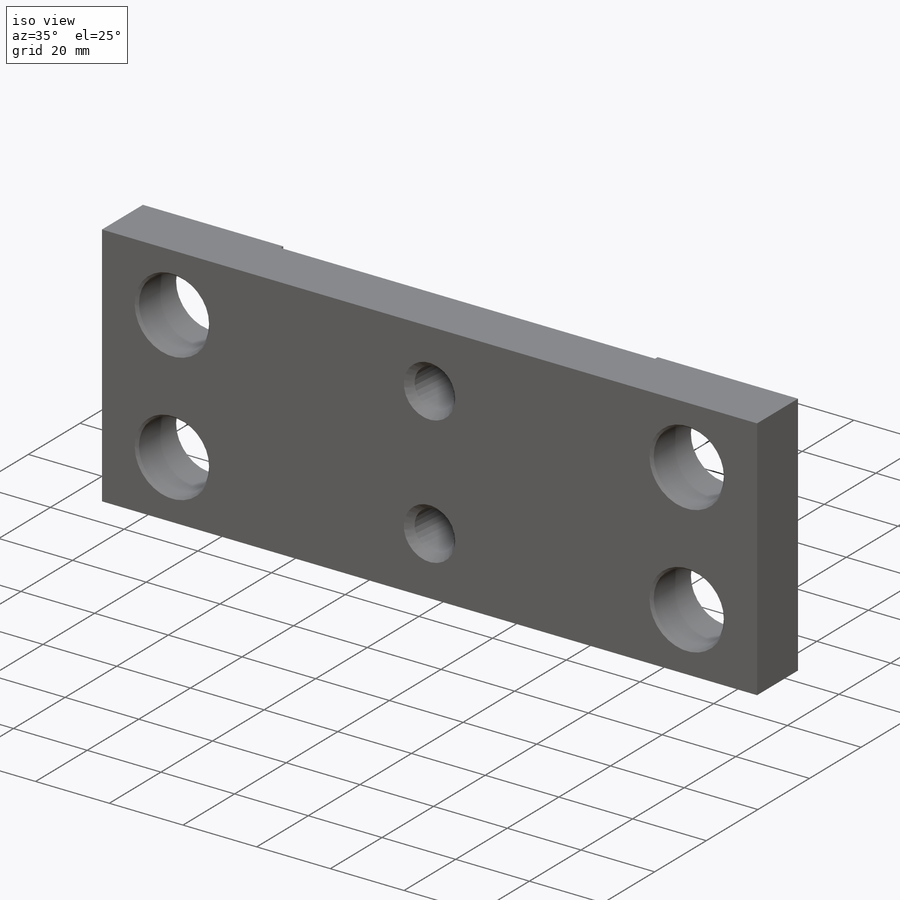
[diagram: iso view]
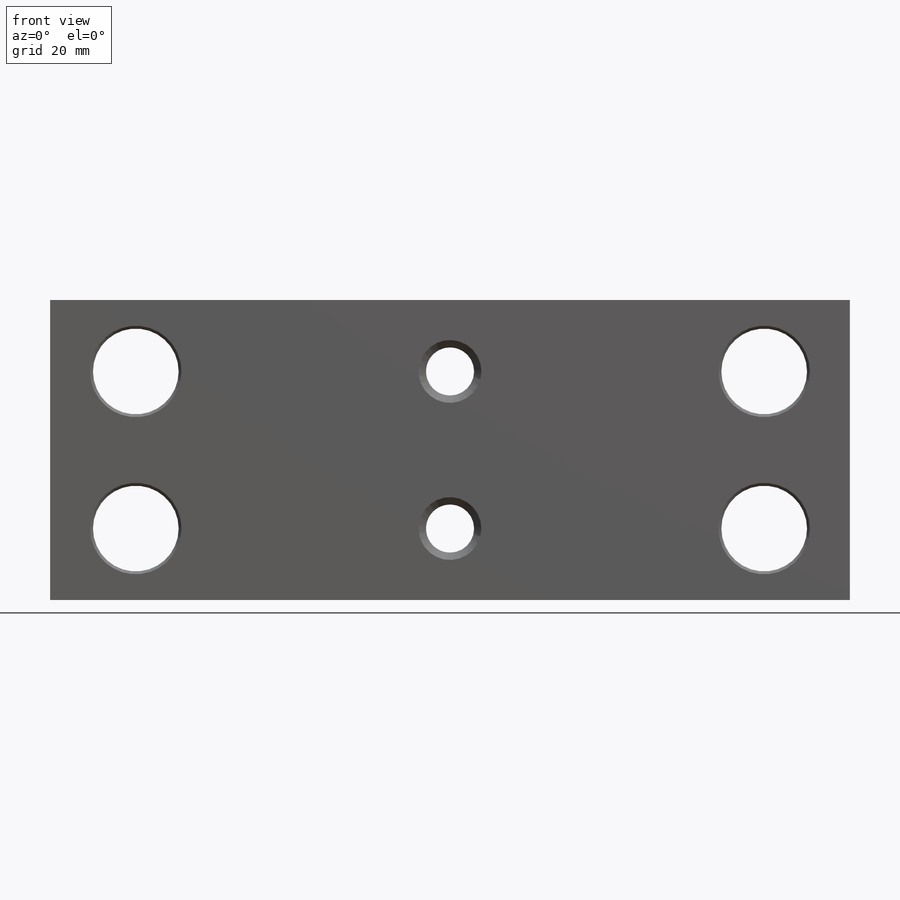
[diagram: front view]
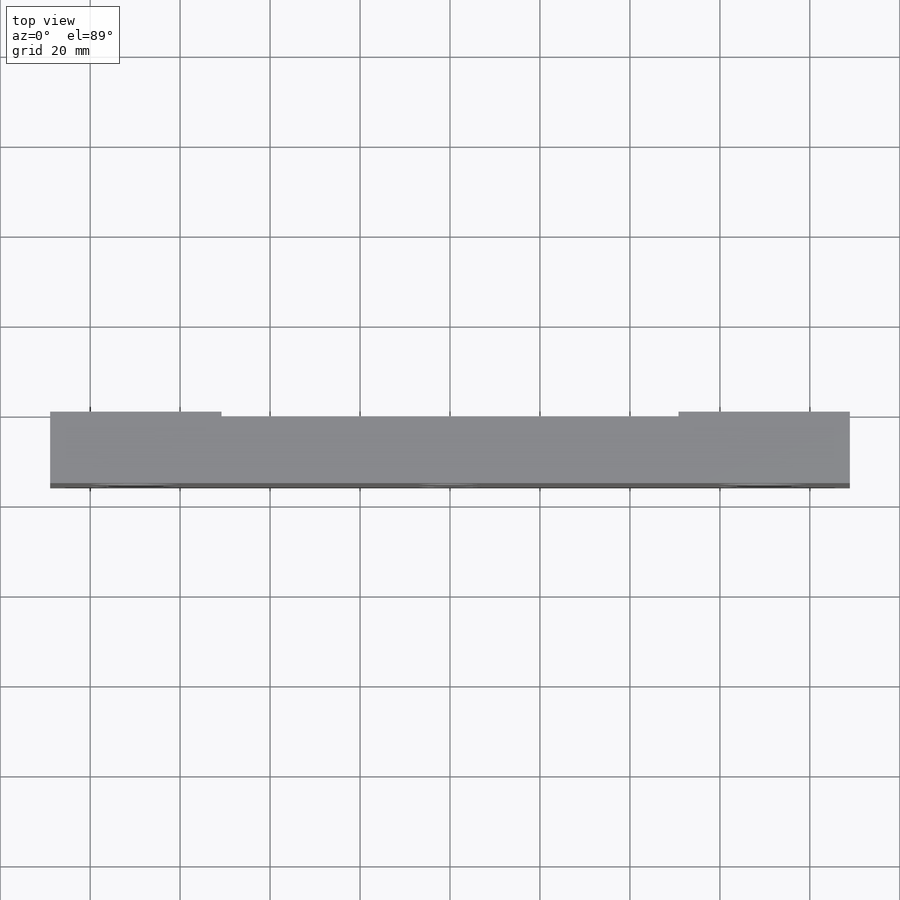
[diagram: top view]
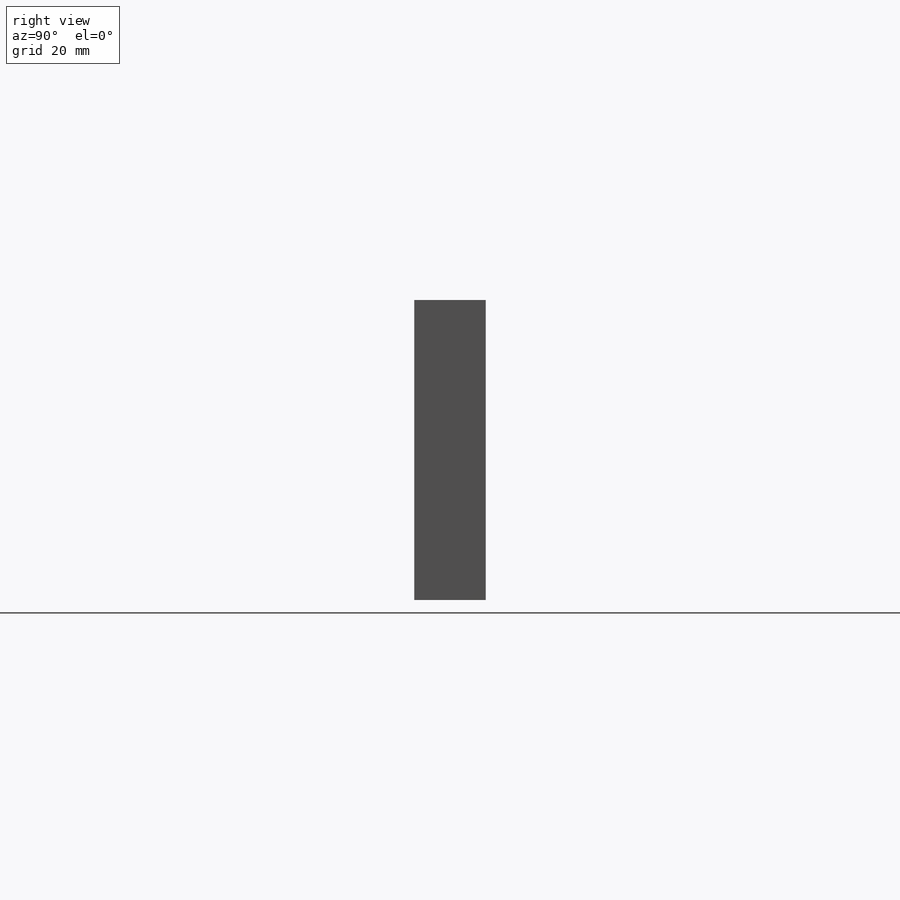
[diagram: right view]
SOLIDWORKS PART (.sldprt)
format: sldprt  version: not decoded by parser v0  size: 667,136 bytes
history: native  units: mm
features: sketch x13, thread x6, hole x2, cut_extrude x2, material x1, extrude x1 + 1 further entry (+13 scaffold rows collapsed)
feature tree (39):
  scaffold x13  (default folders/planes/origin — collapsed)
  material  "AISI 1018 Steel, Cold Rolled"
  "Origin"  ID=-1
  sketch  "Sketch1"  dims[D1=66.675mm D2=177.8mm]
  extrude  "Extrude1"  Depth=15.875mm
  hole  "1/2 Clearance Hole1"  Diameter=19.05mm Depth=15.875mm
  sketch  "Sketch12"  dims[D1=34.925mm D2=15.875mm D3=139.7mm]
  sketch  "Sketch11"  dims[hole-wizard template sketch: 47 standard entries collapsed; hole parameters kept: c15.Thru Hole Depth=15.875mm c15.Near C'Sink Dia.=20.32mm c15.D4=~3.666174mm c15.Near C'Sink Angle=82.0deg c15.Far C'Sink Dia.=20.32mm c15.D6=~9.919017mm c15.Far C'Sink Angle=82.0deg]
  sketch  "Sketch15"  dims[D1=38.1mm]
  cut_extrude  "Cut-Extrude1"  Depth=1.016mm
  sketch  "Sketch17"  dims[c1.D1=~15.255735mm c2.D1=30.0deg c2.D2=9.525mm]
  cut_extrude  "Cut-Extrude2"  Depth=38.1mm
  hole  "1/2-13 Tapped Hole1"  Diameter=10.71626mm Depth=14.859mm
  sketch  "Sketch14"
  sketch  "Sketch13"  dims[hole-wizard template sketch: 54 standard entries collapsed; hole parameters kept: c17.Thru Tap Drill Dia.=~10.71626mm c17.Thru Tap Drill Depth=14.859mm c17.Near C'Sink Dia.=13.97mm c17.D4=~3.666174mm c17.Near C'Sink Angle=82.0deg]
  thread  "Hole Thread3"  Diameter=12.7mm  [1 undecoded]
  sketch  "Sketch18"  dims[D1=25.4mm]
  sketch  "Sketch19"
  thread  "Split Line2"  [2 undecoded]
  sketch  "Sketch20"
  thread  "Split Line3"  [2 undecoded]
  sketch  "Sketch21"
  thread  "Split Line4"  [2 undecoded]
  sketch  "Sketch22"  dims[D1=19.05mm]
  thread  "Split Line5"  [2 undecoded]
  sketch  "Sketch23"
  thread  "Split Line6"  [2 undecoded]
decode coverage: 14 of 24 modeling features carry decoded parameters; 1 rows unclassified (native names shown)
note: ~ marks probable driven/reference dimensions
note: 11 parameter values undecoded
summary: no parameter record found for 5 features
note: suppression state not decoded; provenance and decode notes live in map.json
